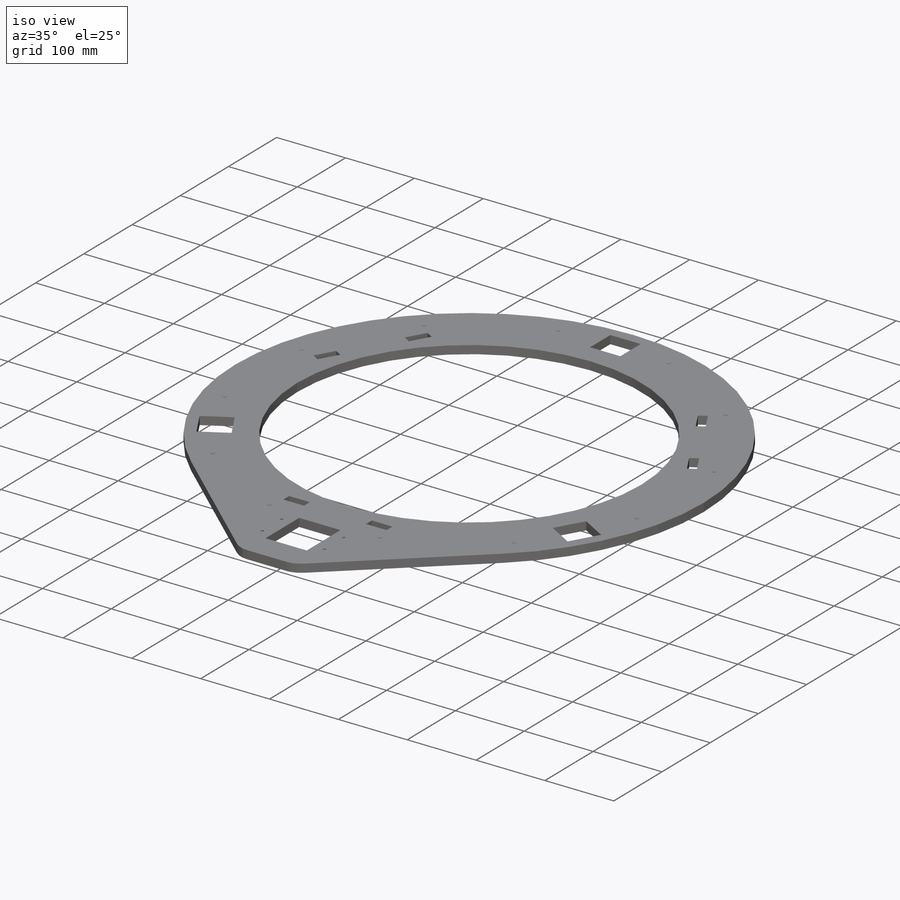
[diagram: iso view]
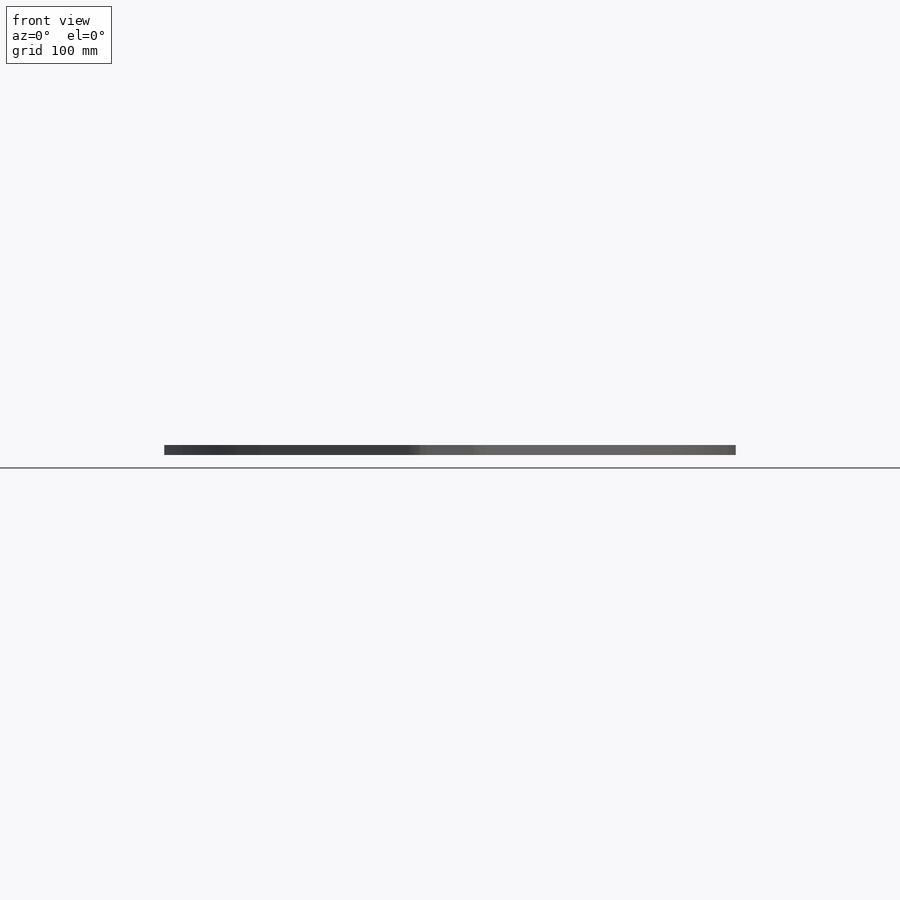
[diagram: front view]
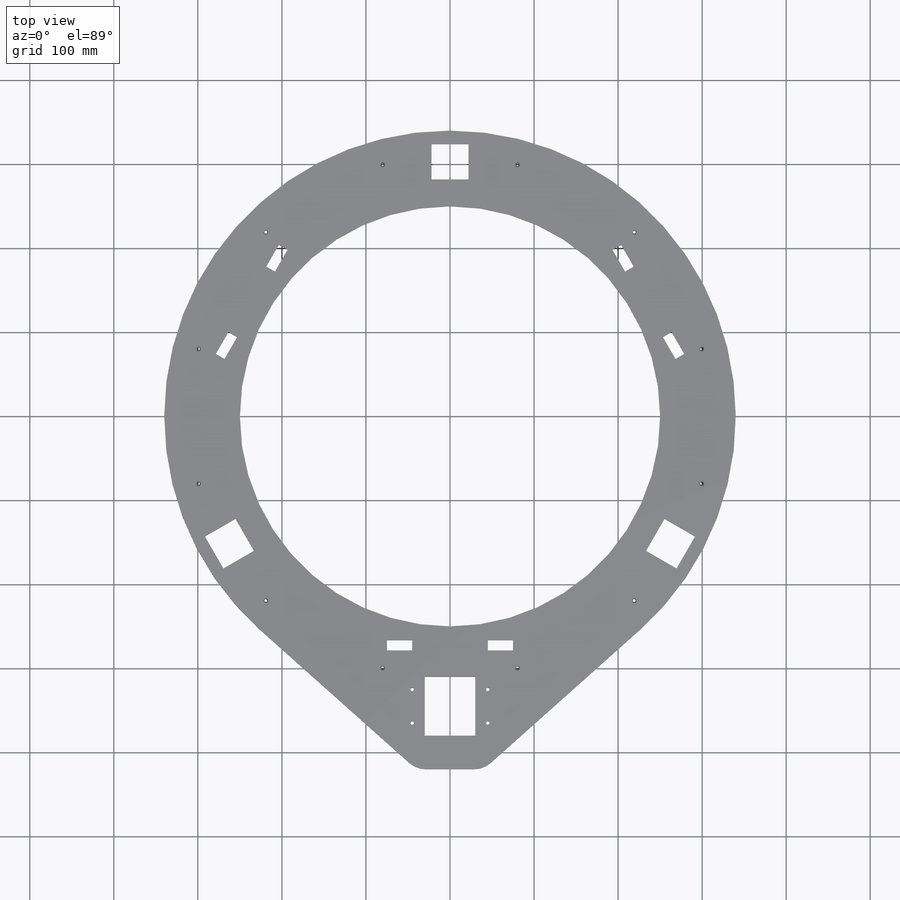
[diagram: top view]
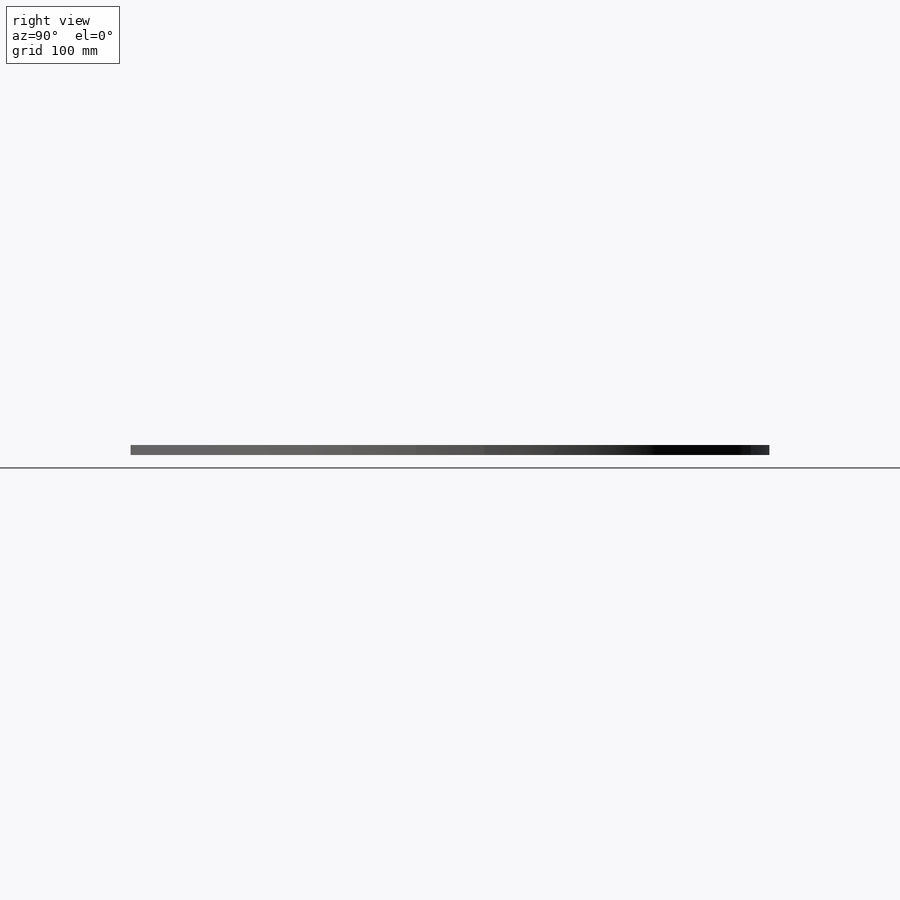
[diagram: right view]
SOLIDWORKS PART (.sldprt)
format: sldprt  version: not decoded by parser v0  size: 453,632 bytes
history: native  units: mm
features: sketch x8, cut_extrude x4, extrude x2, pattern_circular x2, material x1, fillet x1, hole x1 (+12 scaffold rows collapsed)
feature tree (31):
  scaffold x12  (default folders/planes/origin — collapsed)
  material  "Material <not specified>"
  sketch  "Sketch1"  dims[D3=500.0mm D1=0.0mm D2=0.0mm]
  extrude  "Boss-Extrude1"  Depth=12mm
  sketch  "Sketch7"  dims[c1.D6=590.0mm c1.D4=582.0mm c1.D1=90.0mm c1.D2=12.0mm c1.D3=30.0mm c2.D1=90.0mm c2.D4=272.5mm c2.D5=12.5mm]
  cut_extrude  "Cut-Extrude2"  Depth=12mm
  pattern_circular  "CirPattern3"  Count=3 Angle=360deg
  sketch  "Sketch8"  dims[c1.D2=30.0mm c1.D1=420.0mm c2.D2=80.0mm]
  extrude  "Boss-Extrude3"  Depth=12mm
  sketch  "Sketch9"  dims[c1.D1=390.0mm c1.D2=56.4mm c1.D3=75.0mm c2.D1=60.0mm c2.D2=70.0mm c2.D3=310.0mm c3.D1=0.0mm]
  cut_extrude  "Cut-Extrude3"  Depth=12mm
  sketch  "Sketch10"  dims[c1.D1=~430.379123mm c2.D1=120.0deg c2.D2=282.0mm c2.D3=44.0mm c2.D4=42.0mm]
  cut_extrude  "Cut-Extrude4"  Depth=12mm
  pattern_circular  "CirPattern4"  Count=3 Angle=360deg
  sketch  "Sketch11"  dims[D1=4.0mm]
  cut_extrude  "Cut-Extrude5"  Depth=12mm
  fillet  "Fillet1"  Radius=30mm
  hole  "CSK for M4 Flat Head Machine Screw"  Diameter=4.5mm Depth=12mm
  sketch  "Sketch12"  dims[c1.D1=310.0mm c1.D2=~423.706896mm c2.D2=15.0deg]
  sketch  "Sketch13"  dims[Thru Hole Dia.=4.5mm Thru Hole Depth=12.0mm Near C'Sink Dia.=9.4mm Near C'Sink Angle=90.0deg]
decode coverage: 18 of 18 modeling features carry decoded parameters
note: ~ marks probable driven/reference dimensions
note: suppression state not decoded; provenance and decode notes live in map.json
